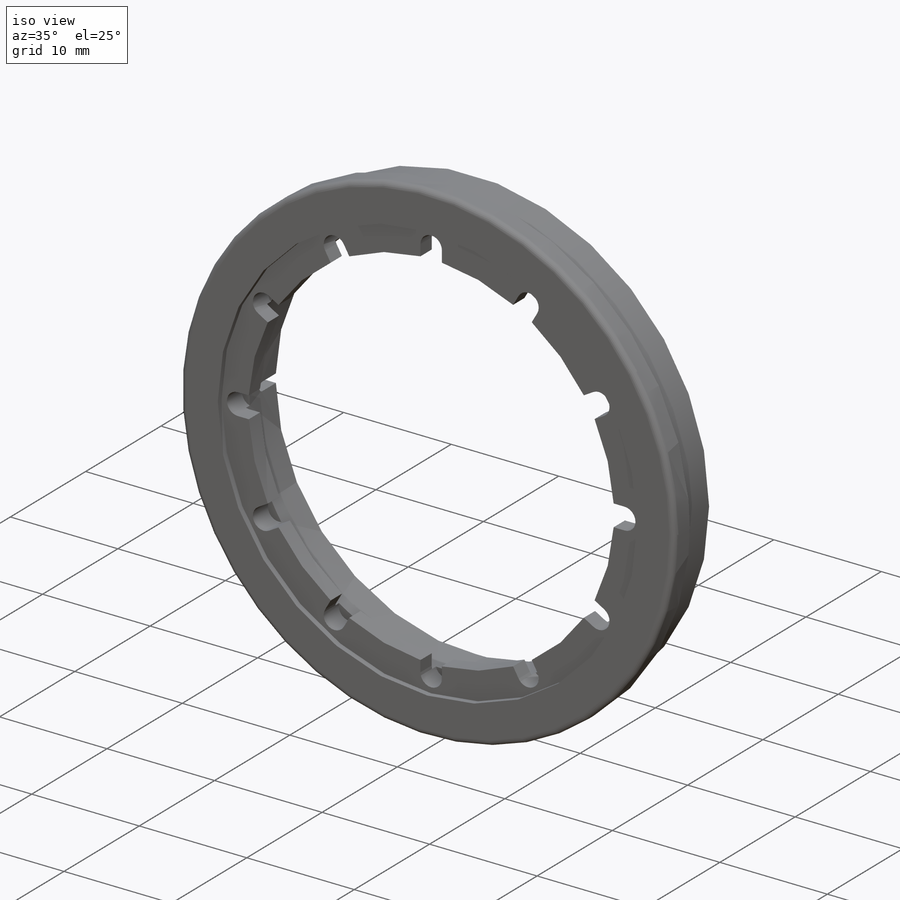
[diagram: iso view]
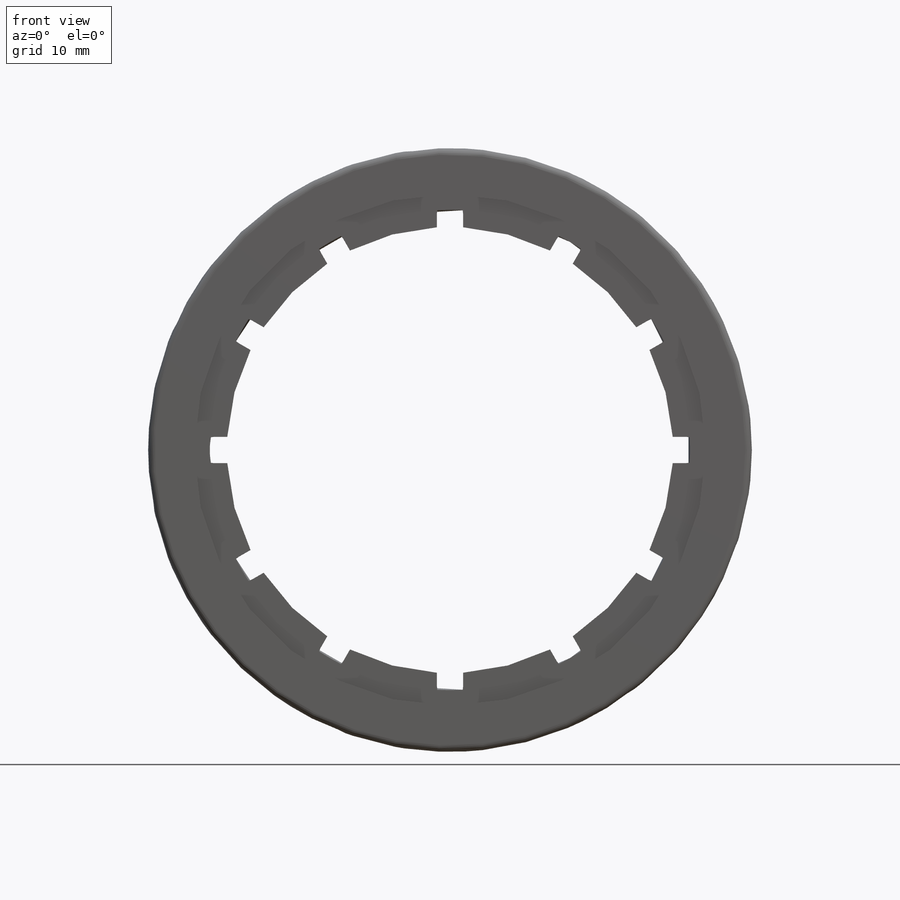
[diagram: front view]
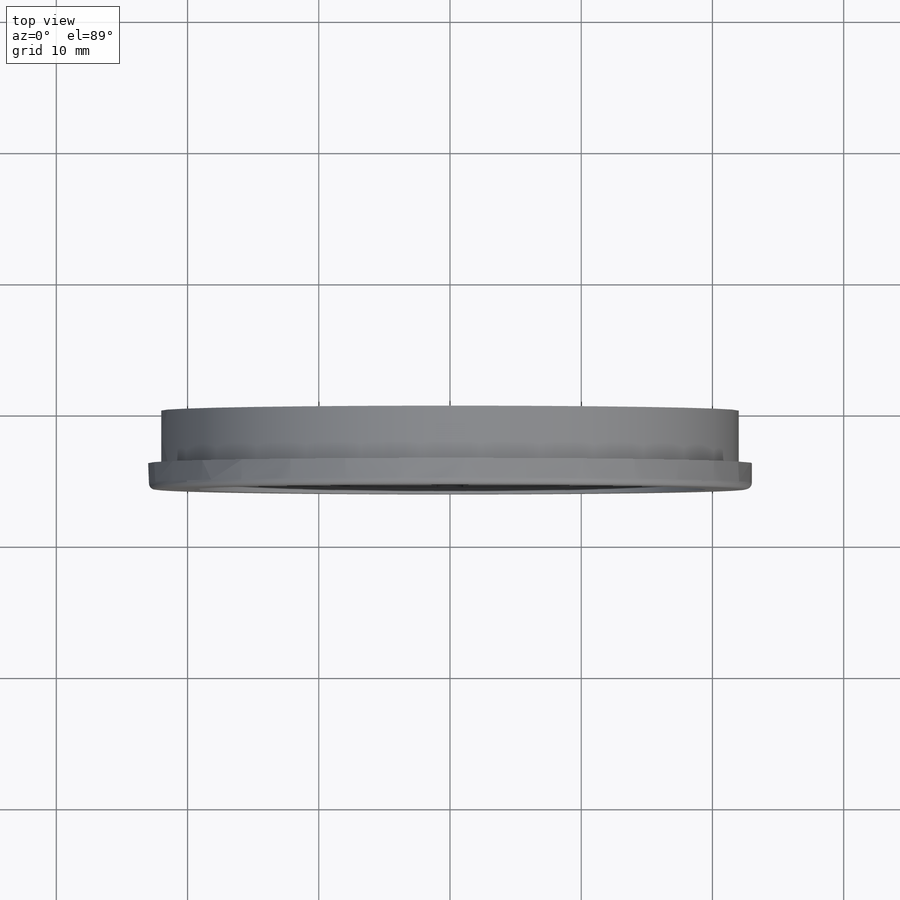
[diagram: top view]
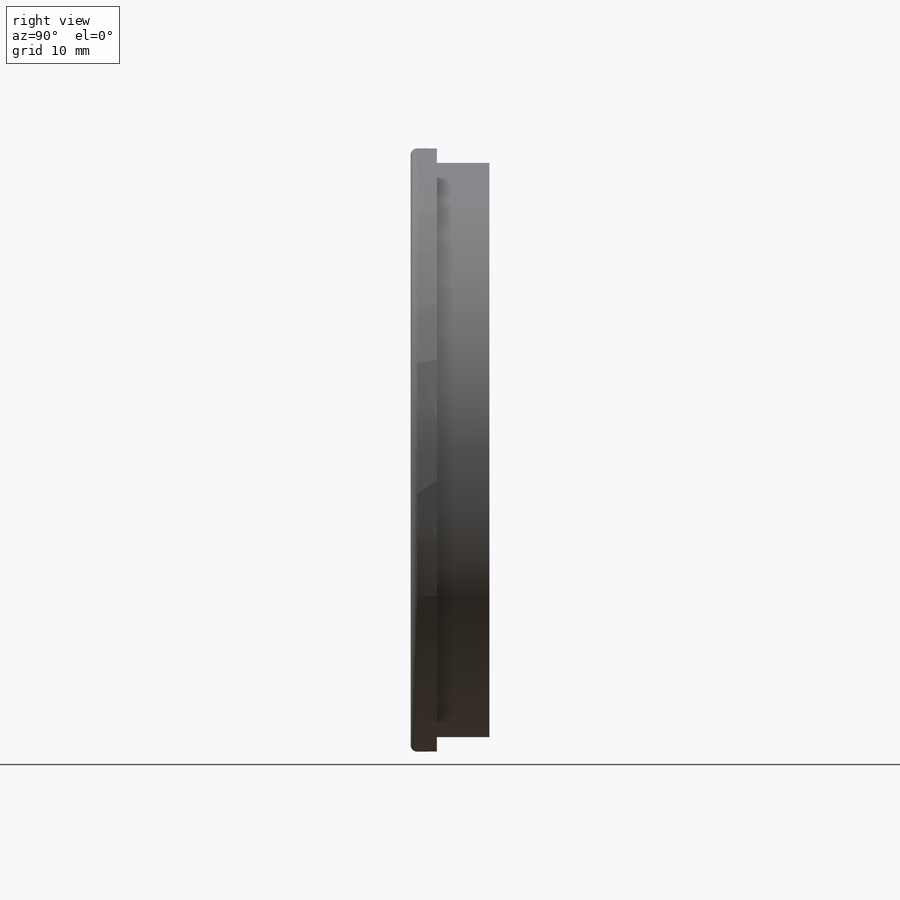
[diagram: right view]
SOLIDWORKS PART (.sldprt)
format: sldprt  version: not decoded by parser v0  size: 384,000 bytes
history: native  units: mm
features: sketch x5, plane x3, extrude x3, cut_extrude x2, material x1, fillet x1, pattern_circular x1 (+8 scaffold rows collapsed)
feature tree (24):
  scaffold x8  (default folders/planes/origin — collapsed)
  material  "Matériau <non spécifié>"
  plane  "Plan de face"
  plane  "Plan de dessus"
  plane  "Plan de droite"
  sketch  "Esquisse1"  dims[D1=36.6mm D2=44.0mm]
  extrude  "Boss.-Extru.1"  Depth=4mm
  sketch  "Esquisse2"  dims[D1=39.0mm D2=46.0mm]
  extrude  "Boss.-Extru.2"  Depth=2mm
  fillet  "Congé1"  Radius=0.5mm
  sketch  "Esquisse3"  dims[D1=0.8mm D2=1.8mm]
  cut_extrude  "Enlèv. mat.-Extru.1"  [1 undecoded]
  sketch  "Esquisse4"  dims[D1=34.0mm]
  extrude  "Boss.-Extru.3"  Depth=1.5mm
  sketch  "Esquisse5"  dims[D1=2.0mm D2=18.0mm]
  cut_extrude  "Enlèv. mat.-Extru.2"  Depth=2mm
  pattern_circular  "Répétition circulaire1"  Count=12 Angle=360deg
decode coverage: 11 of 12 modeling features carry decoded parameters
note: 1 parameter value undecoded
note: suppression state not decoded; provenance and decode notes live in map.json
